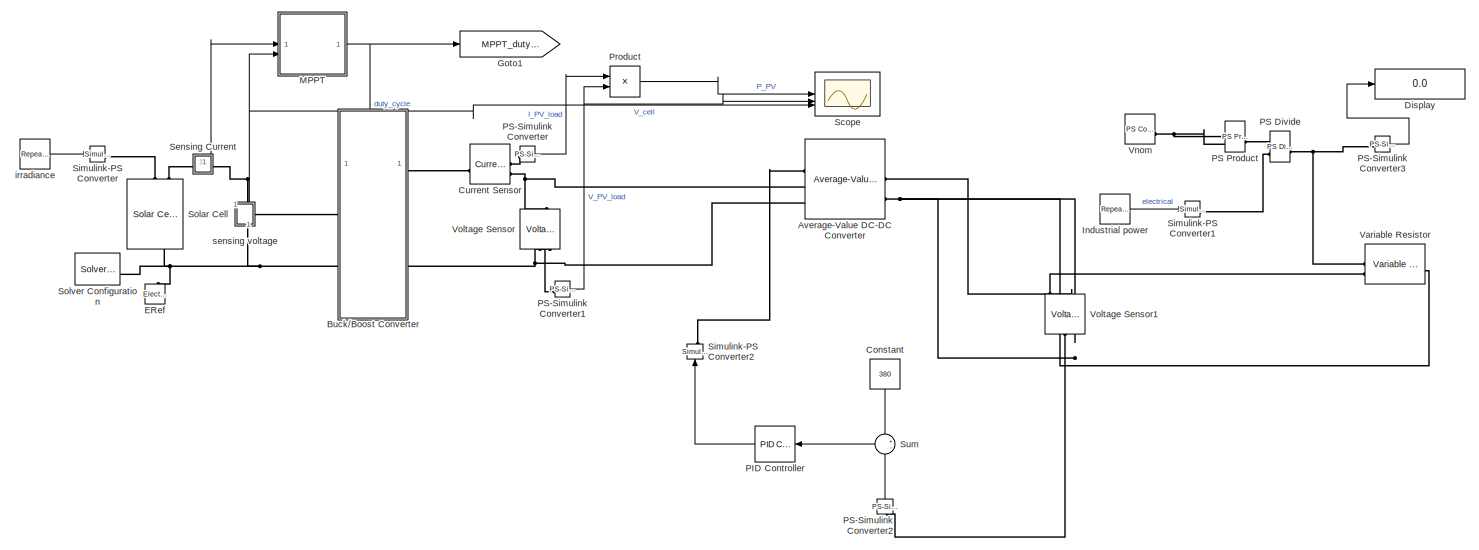
[diagram: root canvas - part 1/2, full width, top band]
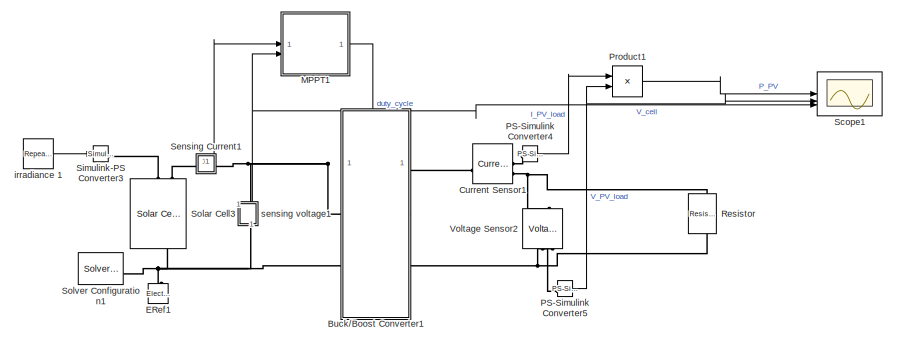
[diagram: root canvas - part 2/2, bottom left region]
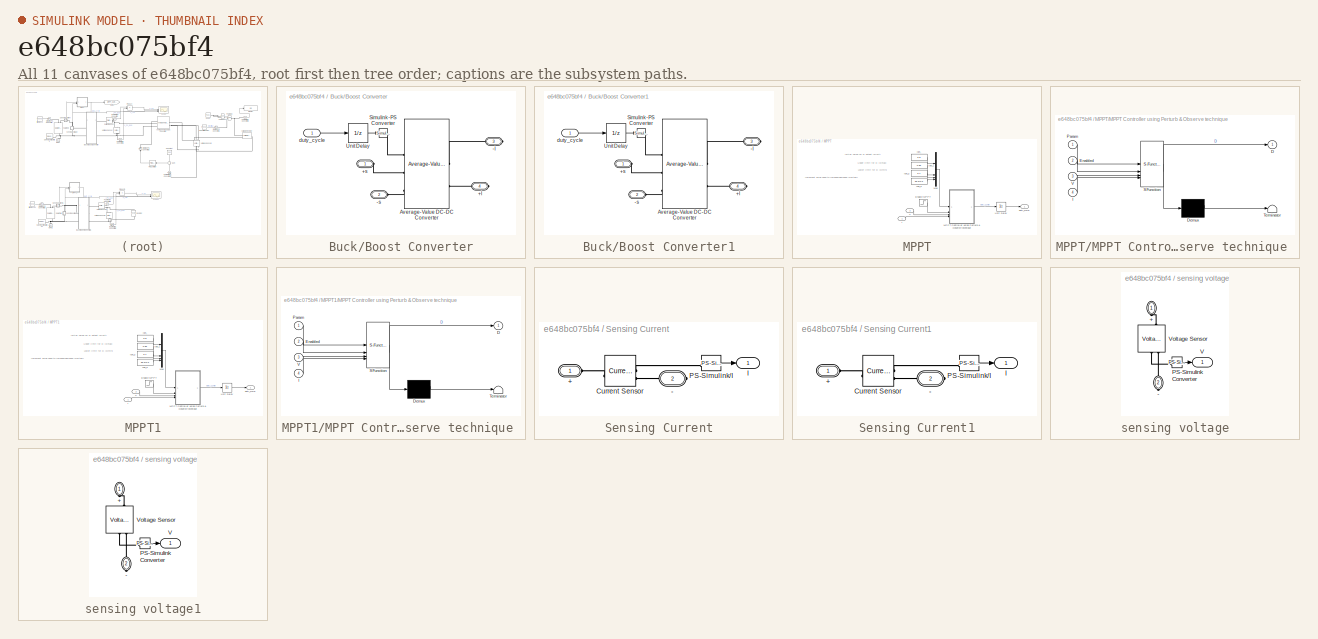
[diagram: thumbnail index - all 11 canvases of the model, root first then tree order]
MODEL slx_e648bc075bf4
KIND model
CONFIG AbsTol = auto
CONFIG EnableMultiTasking = off
CONFIG FixedStep = 0.0001
CONFIG MaxStep = auto
CONFIG MinStep = auto
CONFIG RelTol = 1e-3
CONFIG SampleTimeConstraint = Unconstrained
CONFIG SolverName = FixedStepAuto
CONFIG StartTime = 0.0
CONFIG StopTime = 100
BLOCK [Reference] Average-Value DC-DC Converter  REF=ee_lib/Semiconductors &
Converters/Converters/Average-Value DC-DC
Converter
  SourceBlock = ee_lib/Semiconductors &\nConverters/Converters/Average-Value DC-DC\nConverter
  SourceType = Average-Value DC-DC\nConverter
BLOCK [SubSystem] Buck//Boost Converter
  PortSchema = {"entries":[{"content":{"sides":[{"content":{"connectorIds":["LConn1","LConn2"]},"type":"ConnectorPlacement.EquallySpacedRectSide","uuid":"5c021c6f-6d43-4834-8d7d-5513bb4d55a2"},{"content":{"connectorIds":["RConn1","RConn2"],"side":"RIGHT"},"type":"ConnectorPlacement.EquallySpacedRectSide","uuid":"9a583822-2cc1-49ae-b5aa-706b08d37e90"},{"content":{"connectorIds":["In1"],"side":"TOP"},"type":"Conne...<+268ch>
BLOCK [PMIOPort] Buck//Boost Converter/+l
  Port = 4
  Side = Right
BLOCK [PMIOPort] Buck//Boost Converter/+s
  Side = Left
BLOCK [PMIOPort] Buck//Boost Converter/-l
  Port = 3
  Side = Right
BLOCK [PMIOPort] Buck//Boost Converter/-s
  Port = 2
  Side = Left
BLOCK [Reference] Buck//Boost Converter/Average-Value DC-DC Converter  REF=ee_lib/Semiconductors &
Converters/Converters/Average-Value DC-DC
Converter
  SourceBlock = ee_lib/Semiconductors &\nConverters/Converters/Average-Value DC-DC\nConverter
  SourceType = Average-Value DC-DC\nConverter
BLOCK [Reference] Buck//Boost Converter/Simulink-PS Converter  REF=nesl_utility/Simulink-PS
Converter
  SourceBlock = nesl_utility/Simulink-PS\nConverter
  SourceType = Simulink-PS\nConverter
BLOCK [UnitDelay] Buck//Boost Converter/Unit Delay
  HasFrameUpgradeWarning = on
  InitialCondition = 0.8
  SampleTime = -1
BLOCK [Inport] Buck//Boost Converter/duty_cycle
BLOCK [SubSystem] Buck//Boost Converter1
  PortSchema = {"entries":[{"content":{"sides":[{"content":{"connectorIds":["LConn1","LConn2"]},"type":"ConnectorPlacement.EquallySpacedRectSide","uuid":"5c021c6f-6d43-4834-8d7d-5513bb4d55a2"},{"content":{"connectorIds":["RConn1","RConn2"],"side":"RIGHT"},"type":"ConnectorPlacement.EquallySpacedRectSide","uuid":"9a583822-2cc1-49ae-b5aa-706b08d37e90"},{"content":{"connectorIds":["In1"],"side":"TOP"},"type":"Conne...<+268ch>
BLOCK [PMIOPort] Buck//Boost Converter1/+l
  Port = 4
  Side = Right
BLOCK [PMIOPort] Buck//Boost Converter1/+s
  Side = Left
BLOCK [PMIOPort] Buck//Boost Converter1/-l
  Port = 3
  Side = Right
BLOCK [PMIOPort] Buck//Boost Converter1/-s
  Port = 2
  Side = Left
BLOCK [Reference] Buck//Boost Converter1/Average-Value DC-DC Converter  REF=ee_lib/Semiconductors &
Converters/Converters/Average-Value DC-DC
Converter
  SourceBlock = ee_lib/Semiconductors &\nConverters/Converters/Average-Value DC-DC\nConverter
  SourceType = Average-Value DC-DC\nConverter
BLOCK [Reference] Buck//Boost Converter1/Simulink-PS Converter  REF=nesl_utility/Simulink-PS
Converter
  SourceBlock = nesl_utility/Simulink-PS\nConverter
  SourceType = Simulink-PS\nConverter
BLOCK [UnitDelay] Buck//Boost Converter1/Unit Delay
  HasFrameUpgradeWarning = on
  InitialCondition = 0.8
  SampleTime = -1
BLOCK [Inport] Buck//Boost Converter1/duty_cycle
BLOCK [Constant] Constant
  NameLocation = left
  Value = 380
BLOCK [Reference] Current Sensor  REF=fl_lib/Electrical/Electrical Sensors/Current Sensor
  SourceBlock = fl_lib/Electrical/Electrical Sensors/Current Sensor
  SourceType = Current Sensor
BLOCK [Reference] Current Sensor1  REF=fl_lib/Electrical/Electrical Sensors/Current Sensor
  SourceBlock = fl_lib/Electrical/Electrical Sensors/Current Sensor
  SourceType = Current Sensor
BLOCK [Display] Display
  Decimation = 1
BLOCK [Reference] ERef  REF=fl_lib/Electrical/Electrical Elements/Electrical Reference
  NameLocation = right
  SourceBlock = fl_lib/Electrical/Electrical Elements/Electrical Reference
  SourceType = Electrical Reference
BLOCK [Reference] ERef1  REF=fl_lib/Electrical/Electrical Elements/Electrical Reference
  NameLocation = right
  SourceBlock = fl_lib/Electrical/Electrical Elements/Electrical Reference
  SourceType = Electrical Reference
BLOCK [Goto] Goto1
  GotoTag = MPPT_duty_cycle
  TagVisibility = global
BLOCK [Reference] Industrial power   REF=simulink/Sources/Repeating
Sequence
Interpolated
  NameLocation = top
  SourceBlock = simulink/Sources/Repeating\nSequence\nInterpolated
  SourceType = Repeating Sequence Interpolated
BLOCK [SubSystem] MPPT
BLOCK [Step] MPPT/Enable MPPT
  NameLocation = top
  SampleTime = 0.0001
  Time = 0.1
BLOCK [Inport] MPPT/I
BLOCK [Constant] MPPT/Iph_
  Value = 0.8
BLOCK [Constant] MPPT/Iph_1
  Value = 0.85
BLOCK [Constant] MPPT/Iph_2
  Value = 0.1
BLOCK [Constant] MPPT/Iph_3
  Value = 3e-3*0.5
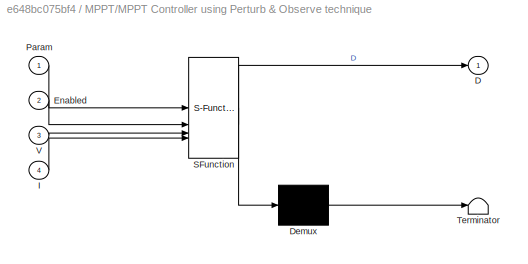
BLOCK [SubSystem] MPPT/MPPT Controller using Perturb & Observe technique 
  ErrorFcn = Stateflow.Translate.translate
  NameLocation = top
  PermitHierarchicalResolution = ExplicitOnly
  SFBlockType = MATLAB Function
  SystemSampleTime = Ts
  TreatAsGroupedWhenPropagatingVariantConditions = off
BLOCK [Demux] MPPT/MPPT Controller using Perturb & Observe technique / Demux 
  Outputs = 1
BLOCK [S-Function] MPPT/MPPT Controller using Perturb & Observe technique / SFunction 
  EnableBusSupport = on
  FunctionName = sf_sfun
  PortCounts = [4 2]
  SFcnIsStateOwnerBlock = off
  SFunctionDeploymentMode = off
  Tag = Stateflow S-Function 3
BLOCK [Terminator] MPPT/MPPT Controller using Perturb & Observe technique / Terminator 
BLOCK [Outport] MPPT/MPPT Controller using Perturb & Observe technique /D
  VectorParamsAs1DForOutWhenUnconnected = off
BLOCK [Inport] MPPT/MPPT Controller using Perturb & Observe technique /Enabled
  Port = 2
BLOCK [Inport] MPPT/MPPT Controller using Perturb & Observe technique /I
  Port = 4
BLOCK [Inport] MPPT/MPPT Controller using Perturb & Observe technique /Param
BLOCK [Inport] MPPT/MPPT Controller using Perturb & Observe technique /V
  Port = 3
BLOCK [Mux] MPPT/Mux
  DisplayOption = bar
BLOCK [UnitDelay] MPPT/Unit Delay
  HasFrameUpgradeWarning = on
  InitialCondition = 0.5
  SampleTime = -1
BLOCK [Inport] MPPT/V
  Port = 2
BLOCK [Outport] MPPT/duty_cycle
BLOCK [SubSystem] MPPT1
BLOCK [Step] MPPT1/Enable MPPT
  NameLocation = top
  SampleTime = 0.0001
  Time = 0.1
BLOCK [Inport] MPPT1/I
BLOCK [Constant] MPPT1/Iph_
  Value = 0.8
BLOCK [Constant] MPPT1/Iph_1
  Value = 0.85
BLOCK [Constant] MPPT1/Iph_2
  Value = 0.1
BLOCK [Constant] MPPT1/Iph_3
  Value = 3e-3*0.5
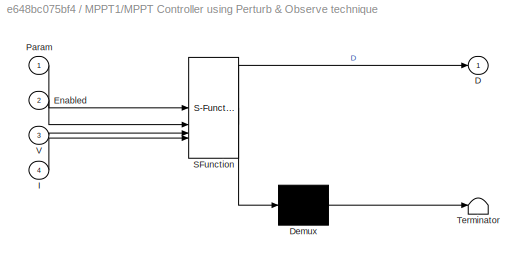
BLOCK [SubSystem] MPPT1/MPPT Controller using Perturb & Observe technique 
  ErrorFcn = Stateflow.Translate.translate
  NameLocation = top
  PermitHierarchicalResolution = ExplicitOnly
  SFBlockType = MATLAB Function
  SystemSampleTime = Ts
  TreatAsGroupedWhenPropagatingVariantConditions = off
BLOCK [Demux] MPPT1/MPPT Controller using Perturb & Observe technique / Demux 
  Outputs = 1
BLOCK [S-Function] MPPT1/MPPT Controller using Perturb & Observe technique / SFunction 
  EnableBusSupport = on
  FunctionName = sf_sfun
  PortCounts = [4 2]
  SFcnIsStateOwnerBlock = off
  SFunctionDeploymentMode = off
  Tag = Stateflow S-Function 1
BLOCK [Terminator] MPPT1/MPPT Controller using Perturb & Observe technique / Terminator 
BLOCK [Outport] MPPT1/MPPT Controller using Perturb & Observe technique /D
  VectorParamsAs1DForOutWhenUnconnected = off
BLOCK [Inport] MPPT1/MPPT Controller using Perturb & Observe technique /Enabled
  Port = 2
BLOCK [Inport] MPPT1/MPPT Controller using Perturb & Observe technique /I
  Port = 4
BLOCK [Inport] MPPT1/MPPT Controller using Perturb & Observe technique /Param
BLOCK [Inport] MPPT1/MPPT Controller using Perturb & Observe technique /V
  Port = 3
BLOCK [Mux] MPPT1/Mux
  DisplayOption = bar
BLOCK [UnitDelay] MPPT1/Unit Delay
  HasFrameUpgradeWarning = on
  InitialCondition = 0.5
  SampleTime = -1
BLOCK [Inport] MPPT1/V
  Port = 2
BLOCK [Outport] MPPT1/duty_cycle
BLOCK [Reference] PID Controller  REF=slpidlib/PID Controller
  NameLocation = top
  SourceBlock = slpidlib/PID Controller
  SourceType = PID 1dof
BLOCK [Reference] PS Divide  REF=fl_lib/Physical Signals/Functions/PS Divide
  SourceBlock = fl_lib/Physical Signals/Functions/PS Divide
  SourceType = PS Divide
BLOCK [Reference] PS Product  REF=fl_lib/Physical Signals/Functions/PS Product
  SourceBlock = fl_lib/Physical Signals/Functions/PS Product
  SourceType = PS Product
BLOCK [Reference] PS-Simulink Converter  REF=nesl_utility/PS-Simulink
Converter
  SourceBlock = nesl_utility/PS-Simulink\nConverter
  SourceType = PS-Simulink\nConverter
BLOCK [Reference] PS-Simulink Converter1  REF=nesl_utility/PS-Simulink
Converter
  SourceBlock = nesl_utility/PS-Simulink\nConverter
  SourceType = PS-Simulink\nConverter
BLOCK [Reference] PS-Simulink Converter2  REF=nesl_utility/PS-Simulink
Converter
  NameLocation = right
  SourceBlock = nesl_utility/PS-Simulink\nConverter
  SourceType = PS-Simulink\nConverter
BLOCK [Reference] PS-Simulink Converter3  REF=nesl_utility/PS-Simulink
Converter
  SourceBlock = nesl_utility/PS-Simulink\nConverter
  SourceType = PS-Simulink\nConverter
BLOCK [Reference] PS-Simulink Converter4  REF=nesl_utility/PS-Simulink
Converter
  SourceBlock = nesl_utility/PS-Simulink\nConverter
  SourceType = PS-Simulink\nConverter
BLOCK [Reference] PS-Simulink Converter5  REF=nesl_utility/PS-Simulink
Converter
  SourceBlock = nesl_utility/PS-Simulink\nConverter
  SourceType = PS-Simulink\nConverter
BLOCK [Product] Product
BLOCK [Product] Product1
BLOCK [Reference] Resistor  REF=fl_lib/Electrical/Electrical Elements/Resistor
  NameLocation = left
  SourceBlock = fl_lib/Electrical/Electrical Elements/Resistor
  SourceType = Resistor
BLOCK [Scope] Scope
  Floating = off
  NumInputPorts = 3
  ScopeSpecificationString = Simulink.scopes.TimeScopeBlockCfg('CurrentConfiguration', extmgr.ConfigurationSet(extmgr.Configuration('Core','General UI',true),extmgr.Configuration('Core','Source UI',true),extmgr.Configuration('Sources','WiredSimulink',true),extmgr.Configuration('Visuals','Time Domain',true,'SerializedDisplays',{struct('MinYLimReal','-22.83139','MaxYLimReal','205.49779','YLabelReal','','MinYLimMag','0.00000','M...<+1449ch>
BLOCK [Scope] Scope1
  Floating = off
  NumInputPorts = 3
  ScopeSpecificationString = Simulink.scopes.TimeScopeBlockCfg('CurrentConfiguration', extmgr.ConfigurationSet(extmgr.Configuration('Core','General UI',true),extmgr.Configuration('Core','Source UI',true),extmgr.Configuration('Sources','WiredSimulink',true,'DataLoggingVariableName','ScopeData1'),extmgr.Configuration('Visuals','Time Domain',true,'SerializedDisplays',{struct('MinYLimReal','-12.20198','MaxYLimReal','116.1712','YL...<+1484ch>
BLOCK [SubSystem] Sensing Current
  PortSchema = {"entries":[{"content":{"sides":[{"content":{"connectorIds":["LConn1"]},"type":"ConnectorPlacement.EquallySpacedRectSide","uuid":"08eaf192-3836-4d70-9f6a-c3aee0977ea6"},{"content":{"connectorIds":["RConn1"],"side":"RIGHT"},"type":"ConnectorPlacement.EquallySpacedRectSide","uuid":"69615d36-c1bf-4d31-b3e4-77c73286e7c7"},{"content":{"connectorIds":["Out1"],"side":"TOP"},"type":"ConnectorPlacement.Equ...<+251ch>
BLOCK [PMIOPort] Sensing Current/+
  Side = Left
BLOCK [PMIOPort] Sensing Current/-
  Port = 2
  Side = Right
BLOCK [Reference] Sensing Current/Current Sensor  REF=fl_lib/Electrical/Electrical Sensors/Current Sensor
  SourceBlock = fl_lib/Electrical/Electrical Sensors/Current Sensor
  SourceType = Current Sensor
BLOCK [Outport] Sensing Current/I
BLOCK [Reference] Sensing Current/PS-Simulink//I  REF=nesl_utility/PS-Simulink
Converter
  SourceBlock = nesl_utility/PS-Simulink\nConverter
  SourceType = PS-Simulink\nConverter
BLOCK [SubSystem] Sensing Current1
  PortSchema = {"entries":[{"content":{"sides":[{"content":{"connectorIds":["LConn1"]},"type":"ConnectorPlacement.EquallySpacedRectSide","uuid":"08eaf192-3836-4d70-9f6a-c3aee0977ea6"},{"content":{"connectorIds":["RConn1"],"side":"RIGHT"},"type":"ConnectorPlacement.EquallySpacedRectSide","uuid":"69615d36-c1bf-4d31-b3e4-77c73286e7c7"},{"content":{"connectorIds":["Out1"],"side":"TOP"},"type":"ConnectorPlacement.Equ...<+251ch>
BLOCK [PMIOPort] Sensing Current1/+
  Side = Left
BLOCK [PMIOPort] Sensing Current1/-
  Port = 2
  Side = Right
BLOCK [Reference] Sensing Current1/Current Sensor  REF=fl_lib/Electrical/Electrical Sensors/Current Sensor
  SourceBlock = fl_lib/Electrical/Electrical Sensors/Current Sensor
  SourceType = Current Sensor
BLOCK [Outport] Sensing Current1/I
BLOCK [Reference] Sensing Current1/PS-Simulink//I  REF=nesl_utility/PS-Simulink
Converter
  SourceBlock = nesl_utility/PS-Simulink\nConverter
  SourceType = PS-Simulink\nConverter
BLOCK [Reference] Simulink-PS Converter  REF=nesl_utility/Simulink-PS
Converter
  SourceBlock = nesl_utility/Simulink-PS\nConverter
  SourceType = Simulink-PS\nConverter
BLOCK [Reference] Simulink-PS Converter1  REF=nesl_utility/Simulink-PS
Converter
  SourceBlock = nesl_utility/Simulink-PS\nConverter
  SourceType = Simulink-PS\nConverter
BLOCK [Reference] Simulink-PS Converter2  REF=nesl_utility/Simulink-PS
Converter
  NameLocation = right
  SourceBlock = nesl_utility/Simulink-PS\nConverter
  SourceType = Simulink-PS\nConverter
BLOCK [Reference] Simulink-PS Converter3  REF=nesl_utility/Simulink-PS
Converter
  SourceBlock = nesl_utility/Simulink-PS\nConverter
  SourceType = Simulink-PS\nConverter
BLOCK [Reference] Solar Cell  REF=ee_lib/Sources/Solar Cell
  AttributesFormatString = Amerisolar:AS_6M30_HC_320W
  NameLocation = left
  SourceBlock = ee_lib/Sources/Solar Cell
  SourceType = Solar Cell
  Tag = {'toolbox/physmod/elec/library/m/ee_lib_parts';'Sources/Solar_Cell/Amerisolar/AS_6M30_HC_320W.xml'}
BLOCK [Reference] Solar Cell3  REF=ee_lib/Sources/Solar Cell
  AttributesFormatString = Amerisolar:AS_6M30_HC_320W
  NameLocation = left
  SourceBlock = ee_lib/Sources/Solar Cell
  SourceType = Solar Cell
  Tag = {'toolbox/physmod/elec/library/m/ee_lib_parts';'Sources/Solar_Cell/Amerisolar/AS_6M30_HC_320W.xml'}
BLOCK [Reference] Solver Configuration  REF=nesl_utility/Solver
Configuration
  SourceBlock = nesl_utility/Solver\nConfiguration
  SourceType = Solver\nConfiguration
BLOCK [Reference] Solver Configuration1  REF=nesl_utility/Solver
Configuration
  SourceBlock = nesl_utility/Solver\nConfiguration
  SourceType = Solver\nConfiguration
BLOCK [Sum] Sum
  Inputs = +-
  NameLocation = top
BLOCK [Reference] Variable Resistor  REF=fl_lib/Electrical/Electrical Elements/Variable Resistor
  SourceBlock = fl_lib/Electrical/Electrical Elements/Variable Resistor
  SourceType = Variable Resistor
BLOCK [Reference] Vnom  REF=fl_lib/Physical Signals/Sources/PS Constant
  SourceBlock = fl_lib/Physical Signals/Sources/PS Constant
  SourceType = PS Constant
BLOCK [Reference] Voltage Sensor  REF=fl_lib/Electrical/Electrical Sensors/Voltage Sensor
  NameLocation = right
  SourceBlock = fl_lib/Electrical/Electrical Sensors/Voltage Sensor
  SourceType = Voltage Sensor
BLOCK [Reference] Voltage Sensor1  REF=fl_lib/Electrical/Electrical Sensors/Voltage Sensor
  NameLocation = right
  SourceBlock = fl_lib/Electrical/Electrical Sensors/Voltage Sensor
  SourceType = Voltage Sensor
BLOCK [Reference] Voltage Sensor2  REF=fl_lib/Electrical/Electrical Sensors/Voltage Sensor
  NameLocation = right
  SourceBlock = fl_lib/Electrical/Electrical Sensors/Voltage Sensor
  SourceType = Voltage Sensor
BLOCK [Reference] irradiance   REF=simulink/Sources/Repeating
Sequence
Interpolated
  NameLocation = top
  SourceBlock = simulink/Sources/Repeating\nSequence\nInterpolated
  SourceType = Repeating Sequence Interpolated
BLOCK [Reference] irradiance 1  REF=simulink/Sources/Repeating
Sequence
Interpolated
  NameLocation = top
  SourceBlock = simulink/Sources/Repeating\nSequence\nInterpolated
  SourceType = Repeating Sequence Interpolated
BLOCK [SubSystem] sensing voltage
  NameLocation = left
  PortSchema = {"entries":[{"content":{"sides":[{"content":{"connectorIds":["LConn1"]},"type":"ConnectorPlacement.EquallySpacedRectSide","uuid":"08eaf192-3836-4d70-9f6a-c3aee0977ea6"},{"content":{"connectorIds":["RConn1"],"side":"RIGHT"},"type":"ConnectorPlacement.EquallySpacedRectSide","uuid":"69615d36-c1bf-4d31-b3e4-77c73286e7c7"},{"content":{"connectorIds":[],"side":"TOP"},"type":"ConnectorPlacement.EquallySp...<+395ch>
BLOCK [PMIOPort] sensing voltage/+
  NameLocation = left
  Side = Left
BLOCK [PMIOPort] sensing voltage/-
  NameLocation = left
  Port = 2
  Side = Right
BLOCK [Reference] sensing voltage/PS-Simulink Converter  REF=nesl_utility/PS-Simulink
Converter
  SourceBlock = nesl_utility/PS-Simulink\nConverter
  SourceType = PS-Simulink\nConverter
BLOCK [Outport] sensing voltage/V
BLOCK [Reference] sensing voltage/Voltage Sensor  REF=fl_lib/Electrical/Electrical Sensors/Voltage Sensor
  NameLocation = right
  SourceBlock = fl_lib/Electrical/Electrical Sensors/Voltage Sensor
  SourceType = Voltage Sensor
BLOCK [SubSystem] sensing voltage1
  NameLocation = left
  PortSchema = {"entries":[{"content":{"sides":[{"content":{"connectorIds":["LConn1"]},"type":"ConnectorPlacement.EquallySpacedRectSide","uuid":"08eaf192-3836-4d70-9f6a-c3aee0977ea6"},{"content":{"connectorIds":["RConn1"],"side":"RIGHT"},"type":"ConnectorPlacement.EquallySpacedRectSide","uuid":"69615d36-c1bf-4d31-b3e4-77c73286e7c7"},{"content":{"connectorIds":[],"side":"TOP"},"type":"ConnectorPlacement.EquallySp...<+395ch>
BLOCK [PMIOPort] sensing voltage1/+
  NameLocation = left
  Side = Left
BLOCK [PMIOPort] sensing voltage1/-
  NameLocation = left
  Port = 2
  Side = Right
BLOCK [Reference] sensing voltage1/PS-Simulink Converter  REF=nesl_utility/PS-Simulink
Converter
  SourceBlock = nesl_utility/PS-Simulink\nConverter
  SourceType = PS-Simulink\nConverter
BLOCK [Outport] sensing voltage1/V
BLOCK [Reference] sensing voltage1/Voltage Sensor  REF=fl_lib/Electrical/Electrical Sensors/Voltage Sensor
  NameLocation = right
  SourceBlock = fl_lib/Electrical/Electrical Sensors/Voltage Sensor
  SourceType = Voltage Sensor
ANNOTATION MPPT: Increment value used to increase/decrease (DeltaD)
ANNOTATION MPPT: Initial value for D output (Dinit)
ANNOTATION MPPT: Lower limit for D (Dmin)
ANNOTATION MPPT: Upper limit for D (Dmax)
ANNOTATION MPPT1: Increment value used to increase/decrease (DeltaD)
ANNOTATION MPPT1: Initial value for D output (Dinit)
ANNOTATION MPPT1: Lower limit for D (Dmin)
ANNOTATION MPPT1: Upper limit for D (Dmax)
LINE Buck//Boost Converter/Unit Delay:1 -> Buck//Boost Converter/Simulink-PS Converter:1
LINE Buck//Boost Converter/duty_cycle:1 -> Buck//Boost Converter/Unit Delay:1
LINE Buck//Boost Converter1/Unit Delay:1 -> Buck//Boost Converter1/Simulink-PS Converter:1
LINE Buck//Boost Converter1/duty_cycle:1 -> Buck//Boost Converter1/Unit Delay:1
LINE Constant:1 -> Sum:1
LINE Industrial power :1 -> Simulink-PS Converter1:1
LINE MPPT/Enable MPPT:1 -> MPPT/MPPT Controller using Perturb & Observe technique :2
LINE MPPT/I:1 -> MPPT/MPPT Controller using Perturb & Observe technique :4
LINE MPPT/Iph_1:1 -> MPPT/Mux:2
LINE MPPT/Iph_2:1 -> MPPT/Mux:3
LINE MPPT/Iph_3:1 -> MPPT/Mux:4
LINE MPPT/Iph_:1 -> MPPT/Mux:1
LINE MPPT/MPPT Controller using Perturb & Observe technique :1 -> MPPT/Unit Delay:1
LINE MPPT/Mux:1 -> MPPT/MPPT Controller using Perturb & Observe technique :1
LINE MPPT/Unit Delay:1 -> MPPT/duty_cycle:1
LINE MPPT/V:1 -> MPPT/MPPT Controller using Perturb & Observe technique :3
LINE MPPT1/Enable MPPT:1 -> MPPT1/MPPT Controller using Perturb & Observe technique :2
LINE MPPT1/I:1 -> MPPT1/MPPT Controller using Perturb & Observe technique :4
LINE MPPT1/Iph_1:1 -> MPPT1/Mux:2
LINE MPPT1/Iph_2:1 -> MPPT1/Mux:3
LINE MPPT1/Iph_3:1 -> MPPT1/Mux:4
LINE MPPT1/Iph_:1 -> MPPT1/Mux:1
LINE MPPT1/MPPT Controller using Perturb & Observe technique :1 -> MPPT1/Unit Delay:1
LINE MPPT1/Mux:1 -> MPPT1/MPPT Controller using Perturb & Observe technique :1
LINE MPPT1/Unit Delay:1 -> MPPT1/duty_cycle:1
LINE MPPT1/V:1 -> MPPT1/MPPT Controller using Perturb & Observe technique :3
LINE MPPT1:1 -> Buck//Boost Converter1:1
NET MPPT:1 -> Buck//Boost Converter:1, Goto1:1
LINE PID Controller:1 -> Simulink-PS Converter2:1
NET PS-Simulink Converter1:1 -> Product:2, Scope:2
LINE PS-Simulink Converter2:1 -> Sum:2
LINE PS-Simulink Converter3:1 -> Display:1
LINE PS-Simulink Converter4:1 -> Product1:1
NET PS-Simulink Converter5:1 -> Product1:2, Scope1:2
LINE PS-Simulink Converter:1 -> Product:1
LINE Product1:1 -> Scope1:1
LINE Product:1 -> Scope:1
LINE Sensing Current/PS-Simulink//I:1 -> Sensing Current/I:1
LINE Sensing Current1/PS-Simulink//I:1 -> Sensing Current1/I:1
LINE Sensing Current1:1 -> MPPT1:1
LINE Sensing Current:1 -> MPPT:1
LINE Sum:1 -> PID Controller:1
LINE irradiance 1:1 -> Simulink-PS Converter3:1
LINE irradiance :1 -> Simulink-PS Converter:1
LINE sensing voltage/PS-Simulink Converter:1 -> sensing voltage/V:1
LINE sensing voltage1/PS-Simulink Converter:1 -> sensing voltage1/V:1
NET sensing voltage1:1 -> MPPT1:2, Scope1:3
NET sensing voltage:1 -> MPPT:2, Scope:3
PLINE Average-Value DC-DC Converter:LConn1 -- Simulink-PS Converter2:RConn1
PNET net1: Average-Value DC-DC Converter:LConn2 -- Current Sensor:RConn2 -- Voltage Sensor:LConn1
PNET net2: Average-Value DC-DC Converter:LConn3 -- Buck//Boost Converter:RConn2 -- Voltage Sensor:RConn2
PNET net3: Average-Value DC-DC Converter:RConn1 -- Variable Resistor:LConn2 -- Voltage Sensor1:LConn1
PNET net4: Average-Value DC-DC Converter:RConn2 -- Variable Resistor:RConn1 -- Voltage Sensor1:RConn2
PLINE Buck//Boost Converter/+l:RConn1 -- Buck//Boost Converter/Average-Value DC-DC Converter:RConn2
PLINE Buck//Boost Converter/+s:RConn1 -- Buck//Boost Converter/Average-Value DC-DC Converter:LConn2
PLINE Buck//Boost Converter/-l:RConn1 -- Buck//Boost Converter/Average-Value DC-DC Converter:RConn1
PLINE Buck//Boost Converter/-s:RConn1 -- Buck//Boost Converter/Average-Value DC-DC Converter:LConn3
PLINE Buck//Boost Converter/Average-Value DC-DC Converter:LConn1 -- Buck//Boost Converter/Simulink-PS Converter:RConn1
PLINE Buck//Boost Converter1/+l:RConn1 -- Buck//Boost Converter1/Average-Value DC-DC Converter:RConn2
PLINE Buck//Boost Converter1/+s:RConn1 -- Buck//Boost Converter1/Average-Value DC-DC Converter:LConn2
PLINE Buck//Boost Converter1/-l:RConn1 -- Buck//Boost Converter1/Average-Value DC-DC Converter:RConn1
PLINE Buck//Boost Converter1/-s:RConn1 -- Buck//Boost Converter1/Average-Value DC-DC Converter:LConn3
PLINE Buck//Boost Converter1/Average-Value DC-DC Converter:LConn1 -- Buck//Boost Converter1/Simulink-PS Converter:RConn1
PNET net5: Buck//Boost Converter1:LConn1 -- Sensing Current1:RConn1 -- sensing voltage1:LConn1
PNET net6: Buck//Boost Converter1:LConn2 -- ERef1:LConn1 -- Solar Cell3:RConn1 -- Solver Configuration1:RConn1 -- sensing voltage1:RConn1
PLINE Buck//Boost Converter1:RConn1 -- Current Sensor1:LConn1
PNET net7: Buck//Boost Converter1:RConn2 -- Resistor:RConn1 -- Voltage Sensor2:RConn2
PNET net8: Buck//Boost Converter:LConn1 -- Sensing Current:RConn1 -- sensing voltage:LConn1
PNET net9: Buck//Boost Converter:LConn2 -- ERef:LConn1 -- Solar Cell:RConn1 -- Solver Configuration:RConn1 -- sensing voltage:RConn1
PLINE Buck//Boost Converter:RConn1 -- Current Sensor:LConn1
PLINE Current Sensor1:RConn1 -- PS-Simulink Converter4:LConn1
PNET net10: Current Sensor1:RConn2 -- Resistor:LConn1 -- Voltage Sensor2:LConn1
PLINE Current Sensor:RConn1 -- PS-Simulink Converter:LConn1
PLINE PS Divide:LConn1 -- PS Product:RConn1
PLINE PS Divide:LConn2 -- Simulink-PS Converter1:RConn1
PNET net11: PS Divide:RConn1 -- PS-Simulink Converter3:LConn1 -- Variable Resistor:LConn1
PNET net12: PS Product:LConn1 -- PS Product:LConn2 -- Vnom:RConn1
PLINE PS-Simulink Converter1:LConn1 -- Voltage Sensor:RConn1
PLINE PS-Simulink Converter2:LConn1 -- Voltage Sensor1:RConn1
PLINE PS-Simulink Converter5:LConn1 -- Voltage Sensor2:RConn1
PLINE Sensing Current/+:RConn1 -- Sensing Current/Current Sensor:LConn1
PLINE Sensing Current/-:RConn1 -- Sensing Current/Current Sensor:RConn2
PLINE Sensing Current/Current Sensor:RConn1 -- Sensing Current/PS-Simulink//I:LConn1
PLINE Sensing Current1/+:RConn1 -- Sensing Current1/Current Sensor:LConn1
PLINE Sensing Current1/-:RConn1 -- Sensing Current1/Current Sensor:RConn2
PLINE Sensing Current1/Current Sensor:RConn1 -- Sensing Current1/PS-Simulink//I:LConn1
PLINE Sensing Current1:LConn1 -- Solar Cell3:LConn2
PLINE Sensing Current:LConn1 -- Solar Cell:LConn2
PLINE Simulink-PS Converter3:RConn1 -- Solar Cell3:LConn1
PLINE Simulink-PS Converter:RConn1 -- Solar Cell:LConn1
PLINE sensing voltage/+:RConn1 -- sensing voltage/Voltage Sensor:LConn1
PLINE sensing voltage/-:RConn1 -- sensing voltage/Voltage Sensor:RConn2
PLINE sensing voltage/PS-Simulink Converter:LConn1 -- sensing voltage/Voltage Sensor:RConn1
PLINE sensing voltage1/+:RConn1 -- sensing voltage1/Voltage Sensor:LConn1
PLINE sensing voltage1/-:RConn1 -- sensing voltage1/Voltage Sensor:RConn2
PLINE sensing voltage1/PS-Simulink Converter:LConn1 -- sensing voltage1/Voltage Sensor:RConn1
note: NET lines group one-source signal fan-out (src -> all destinations, sorted); 1:1 wires keep LINE; PNET lines group multi-terminal physical nets as a canonical sorted terminal list (undirected conserving connections); 2-terminal nets keep the pairwise PLINE form
CHART MPPT/MPPT Controller
using Perturb 
& Observe technique
  states=1 transitions=1
  STATE_LABEL 'eML_blk_kernel()'
  STATE_LABEL 'SCRIPT:\nfunction D  = PandO(Param, Enabled, V, I)\n\n% MPPT controller based on the Perturb & Observe algorithm.\n\n% D output = Duty cycle of the boost converter (value between 0 and 1)\n%\n% Enabled input = 1 to enable the MPPT controller\n% V input = PV array terminal voltage (V)\n% I input = PV array current (A)\n%\n% Param input:\nDinit = Param(1);  %Initial value for D output\nDmax = Param(2);   %Maximu...<+722ch>'
CHART MPPT1/MPPT Controller
using Perturb 
& Observe technique
  states=1 transitions=1
  STATE_LABEL 'eML_blk_kernel()'
  STATE_LABEL 'SCRIPT:\nfunction D  = PandO(Param, Enabled, V, I)\n\n% MPPT controller based on the Perturb & Observe algorithm.\n\n% D output = Duty cycle of the boost converter (value between 0 and 1)\n%\n% Enabled input = 1 to enable the MPPT controller\n% V input = PV array terminal voltage (V)\n% I input = PV array current (A)\n%\n% Param input:\nDinit = Param(1);  %Initial value for D output\nDmax = Param(2);   %Maximu...<+722ch>'
CHART  states=0 transitions=0
CHART  states=0 transitions=0
